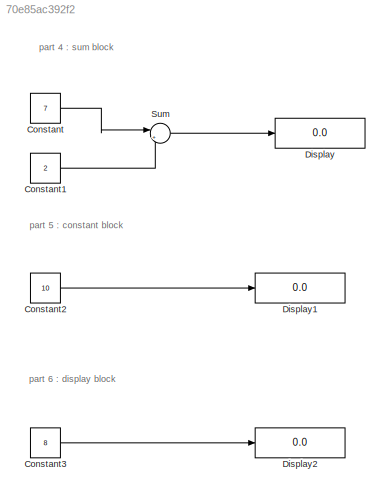
MODEL slx_70e85ac392f2
KIND model
CONFIG AbsTol = auto
CONFIG EnableMultiTasking = off
CONFIG FixedStep = auto
CONFIG MaxStep = auto
CONFIG MinStep = auto
CONFIG RelTol = 1e-3
CONFIG SampleTimeConstraint = Unconstrained
CONFIG Solver = VariableStepAuto
CONFIG SolverName = VariableStepAuto
CONFIG StartTime = 0.0
CONFIG StopTime = 10.0
BLOCK [Constant] Constant
  Value = 7
BLOCK [Constant] Constant1
  Value = 2
BLOCK [Constant] Constant2
  Value = 10
BLOCK [Constant] Constant3
  Value = 8
BLOCK [Display] Display
  Decimation = 1
  Ports = [1]
BLOCK [Display] Display1
  Decimation = 1
  Ports = [1]
BLOCK [Display] Display2
  Decimation = 1
  Ports = [1]
BLOCK [Sum] Sum
  IconShape = round
  InputSameDT = off
  Inputs = |++
  OutDataTypeStr = Inherit: Inherit via internal rule
  Ports = [2, 1]
  SaturateOnIntegerOverflow = off
ANNOTATION (root): part 4 : sum block
ANNOTATION (root): part 5 : constant block
ANNOTATION (root): part 6 : display block
LINE Constant1:1 -> Sum:2
LINE Constant2:1 -> Display1:1
LINE Constant3:1 -> Display2:1
LINE Constant:1 -> Sum:1
LINE Sum:1 -> Display:1
